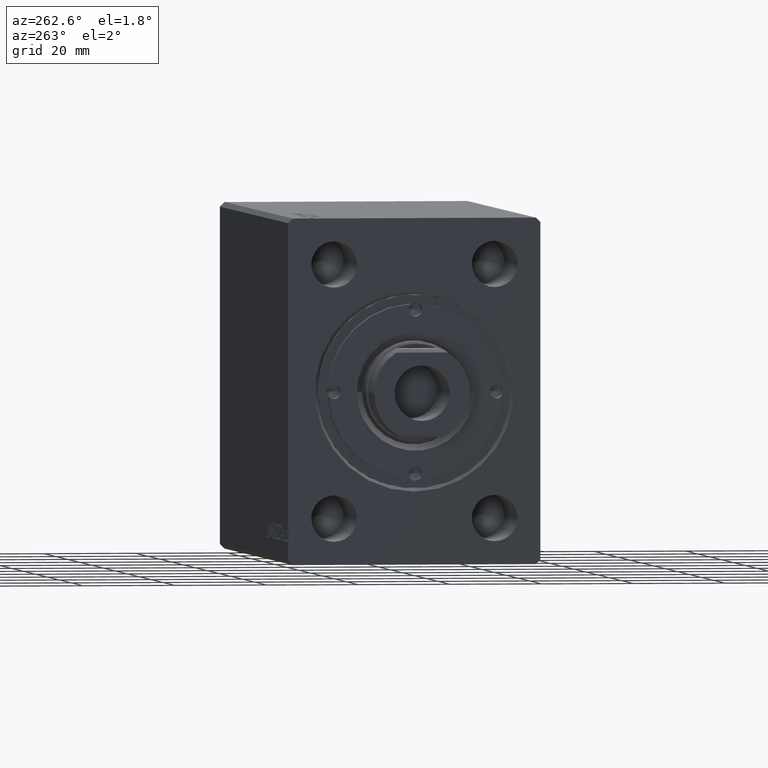
[diagram: clean part render]
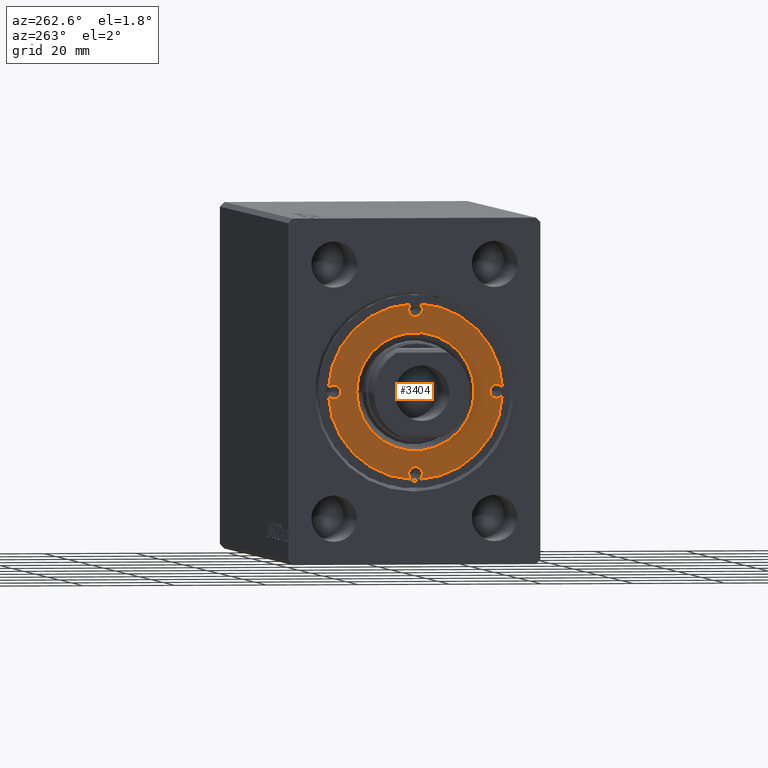
[diagram: same view with one face highlighted and labeled with its STEP entity id]
A machine part, auxiliary view. The second image highlights one B-rep face of the part: STEP entity #3404.
In plain terms, the highlighted planar face has unit normal (-1, 0, 0).
Its self-contained STEP definition (entity closure, byte-faithful):
#415 = ORIENTED_EDGE ( 'NONE', *, *, #24966, .F. ) ;
#569 = CARTESIAN_POINT ( 'NONE',  ( 0.000000000000000000, -17.75000000000000000, 11.79999999999999893 ) ) ;
#573 = CIRCLE ( 'NONE', #41242, 1.499999999999996891 ) ;
#1330 = CARTESIAN_POINT ( 'NONE',  ( 18.98063380281690016, -0.8576365450261579371, 11.79999999999999893 ) ) ;
#1524 = CIRCLE ( 'NONE', #9369, 1.499999999999996891 ) ;
#1941 = ORIENTED_EDGE ( 'NONE', *, *, #20945, .F. ) ;
#2094 = DIRECTION ( 'NONE',  ( 1.000000000000000000, 0.000000000000000000, 0.000000000000000000 ) ) ;
#2202 = CIRCLE ( 'NONE', #5777, 1.499999999999996891 ) ;
#2656 = DIRECTION ( 'NONE',  ( 1.000000000000000000, 0.000000000000000000, 0.000000000000000000 ) ) ;
#2673 = AXIS2_PLACEMENT_3D ( 'NONE', #36798, #6168, #3474 ) ;
#2812 = CARTESIAN_POINT ( 'NONE',  ( 12.79999999999997407, 0.000000000000000000, 11.79999999999999893 ) ) ;
#3212 = ORIENTED_EDGE ( 'NONE', *, *, #27075, .F. ) ;
#3404 = ADVANCED_FACE ( 'NONE', ( #14079, #34173 ), #17211, .T. ) ;
#3474 = DIRECTION ( 'NONE',  ( 1.000000000000000000, 0.000000000000000000, 0.000000000000000000 ) ) ;
#3572 = CARTESIAN_POINT ( 'NONE',  ( -12.79999999999997407, 1.567547902908609029E-15, 11.79999999999999893 ) ) ;
#3574 = AXIS2_PLACEMENT_3D ( 'NONE', #26343, #39981, #9383 ) ;
#4421 = CARTESIAN_POINT ( 'NONE',  ( 1.499999999999996891, 17.75000000000000000, 11.79999999999999893 ) ) ;
#5020 = DIRECTION ( 'NONE',  ( -0.000000000000000000, -0.000000000000000000, 1.000000000000000000 ) ) ;
#5777 = AXIS2_PLACEMENT_3D ( 'NONE', #32715, #5020, #2094 ) ;
#5922 = ORIENTED_EDGE ( 'NONE', *, *, #41414, .T. ) ;
#6168 = DIRECTION ( 'NONE',  ( 0.000000000000000000, 0.000000000000000000, 1.000000000000000000 ) ) ;
#6900 = DIRECTION ( 'NONE',  ( -0.000000000000000000, -0.000000000000000000, -1.000000000000000000 ) ) ;
#6905 = DIRECTION ( 'NONE',  ( 1.000000000000000000, 0.000000000000000000, -0.000000000000000000 ) ) ;
#7076 = CIRCLE ( 'NONE', #26337, 12.79999999999997407 ) ;
#7673 = EDGE_CURVE ( 'NONE', #9633, #12177, #41216, .T. ) ;
#7762 = VERTEX_POINT ( 'NONE', #24260 ) ;
#7967 = ORIENTED_EDGE ( 'NONE', *, *, #41296, .T. ) ;
#8389 = CARTESIAN_POINT ( 'NONE',  ( 0.000000000000000000, 0.000000000000000000, 11.79999999999999893 ) ) ;
#8660 = DIRECTION ( 'NONE',  ( -0.000000000000000000, -0.000000000000000000, 1.000000000000000000 ) ) ;
#8686 = CARTESIAN_POINT ( 'NONE',  ( 0.000000000000000000, -17.75000000000000000, 11.79999999999999893 ) ) ;
#8834 = DIRECTION ( 'NONE',  ( 1.000000000000000000, 0.000000000000000000, 0.000000000000000000 ) ) ;
#8895 = DIRECTION ( 'NONE',  ( -0.000000000000000000, -0.000000000000000000, 1.000000000000000000 ) ) ;
#9249 = CARTESIAN_POINT ( 'NONE',  ( -18.98063380281690016, 0.8576365450261579371, 11.79999999999999893 ) ) ;
#9312 = DIRECTION ( 'NONE',  ( 1.000000000000000000, 0.000000000000000000, 0.000000000000000000 ) ) ;
#9369 = AXIS2_PLACEMENT_3D ( 'NONE', #569, #24259, #34992 ) ;
#9383 = DIRECTION ( 'NONE',  ( 1.000000000000000000, 0.000000000000000000, 0.000000000000000000 ) ) ;
#9633 = VERTEX_POINT ( 'NONE', #29764 ) ;
#10292 = DIRECTION ( 'NONE',  ( 0.000000000000000000, 0.000000000000000000, 1.000000000000000000 ) ) ;
#11405 = CARTESIAN_POINT ( 'NONE',  ( 0.000000000000000000, -17.75000000000000000, 11.79999999999999893 ) ) ;
#12177 = VERTEX_POINT ( 'NONE', #1330 ) ;
#12209 = CARTESIAN_POINT ( 'NONE',  ( 0.000000000000000000, 17.75000000000000000, 11.79999999999999893 ) ) ;
#12246 = DIRECTION ( 'NONE',  ( 1.000000000000000000, 0.000000000000000000, 0.000000000000000000 ) ) ;
#13599 = AXIS2_PLACEMENT_3D ( 'NONE', #17876, #10292, #6905 ) ;
#14079 = FACE_OUTER_BOUND ( 'NONE', #37203, .T. ) ;
#14309 = EDGE_CURVE ( 'NONE', #20140, #22544, #43962, .T. ) ;
#14311 = DIRECTION ( 'NONE',  ( -0.000000000000000000, -0.000000000000000000, 1.000000000000000000 ) ) ;
#14550 = VERTEX_POINT ( 'NONE', #2812 ) ;
#14798 = CARTESIAN_POINT ( 'NONE',  ( 18.98063380281688950, 0.8576365450261742573, 11.79999999999999893 ) ) ;
#15047 = CIRCLE ( 'NONE', #20744, 19.00000000000000000 ) ;
#15604 = DIRECTION ( 'NONE',  ( 1.000000000000000000, 0.000000000000000000, 0.000000000000000000 ) ) ;
#16151 = VERTEX_POINT ( 'NONE', #19938 ) ;
#16736 = CARTESIAN_POINT ( 'NONE',  ( -1.499999999999996891, -17.75000000000000000, 11.79999999999999893 ) ) ;
#16743 = EDGE_LOOP ( 'NONE', ( #35662, #43890 ) ) ;
#16958 = CARTESIAN_POINT ( 'NONE',  ( -17.75000000000000000, 0.000000000000000000, 11.79999999999999893 ) ) ;
#17071 = VERTEX_POINT ( 'NONE', #14798 ) ;
#17211 = PLANE ( 'NONE',  #13599 ) ;
#17876 = CARTESIAN_POINT ( 'NONE',  ( 0.000000000000000000, 0.000000000000000000, 11.79999999999999893 ) ) ;
#17883 = EDGE_CURVE ( 'NONE', #32302, #23598, #573, .T. ) ;
#17933 = CIRCLE ( 'NONE', #40719, 1.499999999999996891 ) ;
#18231 = DIRECTION ( 'NONE',  ( -0.000000000000000000, -0.000000000000000000, -1.000000000000000000 ) ) ;
#18838 = ORIENTED_EDGE ( 'NONE', *, *, #40561, .F. ) ;
#19487 = ORIENTED_EDGE ( 'NONE', *, *, #17883, .F. ) ;
#19618 = CARTESIAN_POINT ( 'NONE',  ( 1.499999999999996891, -17.75000000000000000, 11.79999999999999893 ) ) ;
#19889 = CARTESIAN_POINT ( 'NONE',  ( 0.000000000000000000, 0.000000000000000000, 11.79999999999999893 ) ) ;
#19938 = CARTESIAN_POINT ( 'NONE',  ( -0.8576365450261700385, 18.98063380281688950, 11.79999999999999893 ) ) ;
#20045 = VERTEX_POINT ( 'NONE', #28351 ) ;
#20082 = CIRCLE ( 'NONE', #31513, 1.499999999999997780 ) ;
#20140 = VERTEX_POINT ( 'NONE', #33236 ) ;
#20292 = CARTESIAN_POINT ( 'NONE',  ( 0.8576365450261562717, 18.98063380281690016, 11.79999999999999893 ) ) ;
#20315 = CARTESIAN_POINT ( 'NONE',  ( 0.000000000000000000, 0.000000000000000000, 11.79999999999999893 ) ) ;
#20412 = ORIENTED_EDGE ( 'NONE', *, *, #36779, .F. ) ;
#20738 = EDGE_CURVE ( 'NONE', #14550, #30310, #7076, .T. ) ;
#20744 = AXIS2_PLACEMENT_3D ( 'NONE', #41040, #27204, #33905 ) ;
#20945 = EDGE_CURVE ( 'NONE', #9633, #32302, #41335, .T. ) ;
#21362 = DIRECTION ( 'NONE',  ( -0.000000000000000000, -0.000000000000000000, 1.000000000000000000 ) ) ;
#21805 = VERTEX_POINT ( 'NONE', #21874 ) ;
#21874 = CARTESIAN_POINT ( 'NONE',  ( -18.98063380281689305, -0.8576365450261700385, 11.79999999999999893 ) ) ;
#22154 = CIRCLE ( 'NONE', #36416, 12.79999999999997407 ) ;
#22544 = VERTEX_POINT ( 'NONE', #9249 ) ;
#23598 = VERTEX_POINT ( 'NONE', #16736 ) ;
#23720 = VERTEX_POINT ( 'NONE', #4421 ) ;
#24040 = EDGE_CURVE ( 'NONE', #30310, #14550, #22154, .T. ) ;
#24259 = DIRECTION ( 'NONE',  ( -0.000000000000000000, -0.000000000000000000, 1.000000000000000000 ) ) ;
#24260 = CARTESIAN_POINT ( 'NONE',  ( 16.25000000000000000, 1.836970198721027222E-16, 11.79999999999999893 ) ) ;
#24715 = EDGE_CURVE ( 'NONE', #17071, #40368, #27863, .T. ) ;
#24756 = EDGE_CURVE ( 'NONE', #21805, #20140, #33579, .T. ) ;
#24966 = EDGE_CURVE ( 'NONE', #26175, #23720, #17933, .T. ) ;
#24983 = CIRCLE ( 'NONE', #30695, 1.499999999999996891 ) ;
#25586 = ORIENTED_EDGE ( 'NONE', *, *, #24756, .F. ) ;
#25837 = ORIENTED_EDGE ( 'NONE', *, *, #26270, .F. ) ;
#26057 = DIRECTION ( 'NONE',  ( -0.000000000000000000, -0.000000000000000000, 1.000000000000000000 ) ) ;
#26175 = VERTEX_POINT ( 'NONE', #34763 ) ;
#26269 = CARTESIAN_POINT ( 'NONE',  ( 0.000000000000000000, 17.75000000000000000, 11.79999999999999893 ) ) ;
#26270 = EDGE_CURVE ( 'NONE', #23598, #20045, #1524, .T. ) ;
#26337 = AXIS2_PLACEMENT_3D ( 'NONE', #19889, #6900, #27249 ) ;
#26343 = CARTESIAN_POINT ( 'NONE',  ( 0.000000000000000000, 0.000000000000000000, 11.79999999999999893 ) ) ;
#27075 = EDGE_CURVE ( 'NONE', #17071, #7762, #20082, .T. ) ;
#27204 = DIRECTION ( 'NONE',  ( 0.000000000000000000, 0.000000000000000000, 1.000000000000000000 ) ) ;
#27240 = DIRECTION ( 'NONE',  ( 0.000000000000000000, 0.000000000000000000, 1.000000000000000000 ) ) ;
#27249 = DIRECTION ( 'NONE',  ( 1.000000000000000000, 0.000000000000000000, 0.000000000000000000 ) ) ;
#27780 = AXIS2_PLACEMENT_3D ( 'NONE', #11405, #14311, #29458 ) ;
#27863 = CIRCLE ( 'NONE', #3574, 19.00000000000000000 ) ;
#27879 = AXIS2_PLACEMENT_3D ( 'NONE', #20315, #27240, #2656 ) ;
#28110 = DIRECTION ( 'NONE',  ( -0.000000000000000000, -0.000000000000000000, 1.000000000000000000 ) ) ;
#28351 = CARTESIAN_POINT ( 'NONE',  ( -0.8576365450261641543, -18.98063380281689305, 11.79999999999999893 ) ) ;
#28556 = DIRECTION ( 'NONE',  ( 1.000000000000000000, 0.000000000000000000, 0.000000000000000000 ) ) ;
#29458 = DIRECTION ( 'NONE',  ( 1.000000000000000000, 0.000000000000000000, 0.000000000000000000 ) ) ;
#29703 = CARTESIAN_POINT ( 'NONE',  ( 17.75000000000000000, 0.000000000000000000, 11.79999999999999893 ) ) ;
#29764 = CARTESIAN_POINT ( 'NONE',  ( 0.8576365450261690393, -18.98063380281689305, 11.79999999999999893 ) ) ;
#30310 = VERTEX_POINT ( 'NONE', #3572 ) ;
#30695 = AXIS2_PLACEMENT_3D ( 'NONE', #26269, #26057, #9312 ) ;
#31513 = AXIS2_PLACEMENT_3D ( 'NONE', #29703, #36851, #36639 ) ;
#31908 = CARTESIAN_POINT ( 'NONE',  ( -17.75000000000000000, 0.000000000000000000, 11.79999999999999893 ) ) ;
#32235 = ORIENTED_EDGE ( 'NONE', *, *, #36389, .F. ) ;
#32296 = DIRECTION ( 'NONE',  ( 1.000000000000000000, 0.000000000000000000, 0.000000000000000000 ) ) ;
#32302 = VERTEX_POINT ( 'NONE', #19618 ) ;
#32715 = CARTESIAN_POINT ( 'NONE',  ( 0.000000000000000000, 17.75000000000000000, 11.79999999999999893 ) ) ;
#32787 = ORIENTED_EDGE ( 'NONE', *, *, #7673, .T. ) ;
#32867 = CIRCLE ( 'NONE', #34301, 1.499999999999997780 ) ;
#33236 = CARTESIAN_POINT ( 'NONE',  ( -16.25000000000000000, 0.000000000000000000, 11.79999999999999893 ) ) ;
#33579 = CIRCLE ( 'NONE', #37868, 1.499999999999997780 ) ;
#33905 = DIRECTION ( 'NONE',  ( 1.000000000000000000, 0.000000000000000000, 0.000000000000000000 ) ) ;
#34173 = FACE_BOUND ( 'NONE', #16743, .T. ) ;
#34301 = AXIS2_PLACEMENT_3D ( 'NONE', #42816, #8660, #12246 ) ;
#34326 = ORIENTED_EDGE ( 'NONE', *, *, #24715, .T. ) ;
#34763 = CARTESIAN_POINT ( 'NONE',  ( -1.499999999999996891, 17.75000000000000000, 11.79999999999999893 ) ) ;
#34992 = DIRECTION ( 'NONE',  ( 1.000000000000000000, 0.000000000000000000, 0.000000000000000000 ) ) ;
#35218 = DIRECTION ( 'NONE',  ( 1.000000000000000000, 0.000000000000000000, 0.000000000000000000 ) ) ;
#35662 = ORIENTED_EDGE ( 'NONE', *, *, #20738, .T. ) ;
#36389 = EDGE_CURVE ( 'NONE', #7762, #12177, #32867, .T. ) ;
#36416 = AXIS2_PLACEMENT_3D ( 'NONE', #8389, #18231, #32296 ) ;
#36639 = DIRECTION ( 'NONE',  ( 1.000000000000000000, 0.000000000000000000, 0.000000000000000000 ) ) ;
#36779 = EDGE_CURVE ( 'NONE', #23720, #40368, #2202, .T. ) ;
#36798 = CARTESIAN_POINT ( 'NONE',  ( 0.000000000000000000, 0.000000000000000000, 11.79999999999999893 ) ) ;
#36851 = DIRECTION ( 'NONE',  ( -0.000000000000000000, -0.000000000000000000, 1.000000000000000000 ) ) ;
#37203 = EDGE_LOOP ( 'NONE', ( #25586, #7967, #25837, #19487, #1941, #32787, #32235, #3212, #34326, #20412, #415, #18838, #5922, #38999 ) ) ;
#37868 = AXIS2_PLACEMENT_3D ( 'NONE', #16958, #21362, #35218 ) ;
#38999 = ORIENTED_EDGE ( 'NONE', *, *, #14309, .F. ) ;
#39449 = DIRECTION ( 'NONE',  ( -0.000000000000000000, -0.000000000000000000, 1.000000000000000000 ) ) ;
#39744 = AXIS2_PLACEMENT_3D ( 'NONE', #31908, #28110, #28556 ) ;
#39981 = DIRECTION ( 'NONE',  ( 0.000000000000000000, 0.000000000000000000, 1.000000000000000000 ) ) ;
#40368 = VERTEX_POINT ( 'NONE', #20292 ) ;
#40561 = EDGE_CURVE ( 'NONE', #16151, #26175, #24983, .T. ) ;
#40719 = AXIS2_PLACEMENT_3D ( 'NONE', #12209, #39449, #8834 ) ;
#40735 = CIRCLE ( 'NONE', #27879, 19.00000000000000000 ) ;
#41040 = CARTESIAN_POINT ( 'NONE',  ( 0.000000000000000000, 0.000000000000000000, 11.79999999999999893 ) ) ;
#41216 = CIRCLE ( 'NONE', #2673, 19.00000000000000000 ) ;
#41242 = AXIS2_PLACEMENT_3D ( 'NONE', #8686, #8895, #15604 ) ;
#41296 = EDGE_CURVE ( 'NONE', #21805, #20045, #15047, .T. ) ;
#41335 = CIRCLE ( 'NONE', #27780, 1.499999999999996891 ) ;
#41414 = EDGE_CURVE ( 'NONE', #16151, #22544, #40735, .T. ) ;
#42816 = CARTESIAN_POINT ( 'NONE',  ( 17.75000000000000000, 0.000000000000000000, 11.79999999999999893 ) ) ;
#43890 = ORIENTED_EDGE ( 'NONE', *, *, #24040, .T. ) ;
#43962 = CIRCLE ( 'NONE', #39744, 1.499999999999997780 ) ;